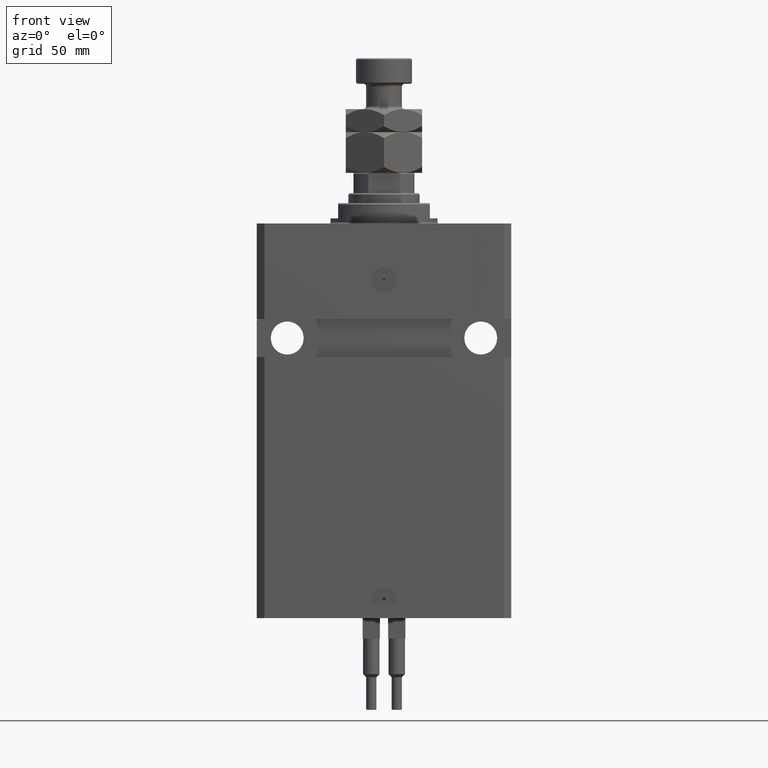
[diagram: clean part render]
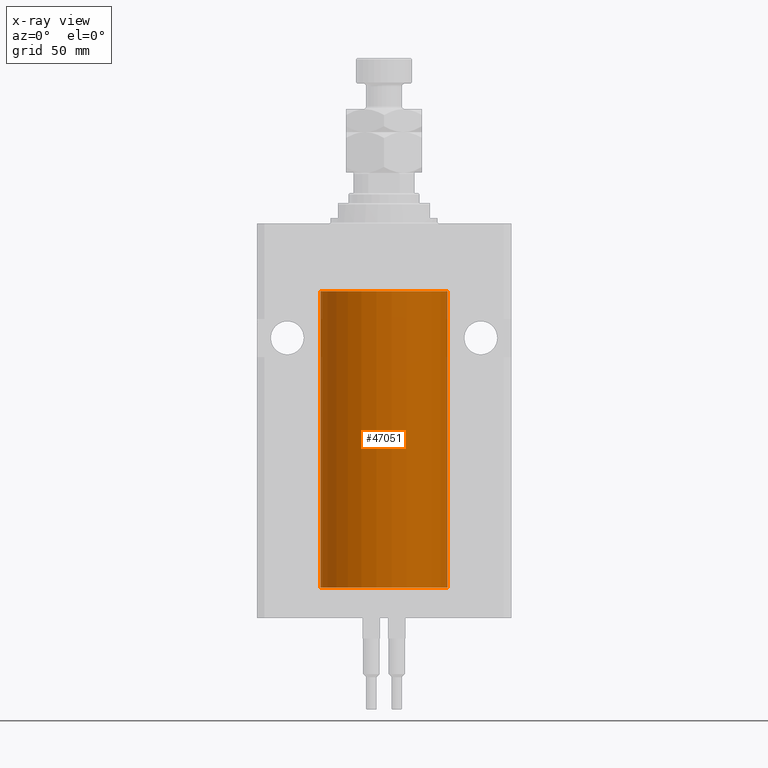
[diagram: x-ray — body ghosted, one internal face saturated and labeled with its STEP entity id]
A machine part, front view, then the same camera in x-ray: the body is ghosted and one INTERNAL B-rep face — a face not visible from any outside direction — is saturated and labeled: STEP entity #47051.
In plain terms, the highlighted cylindrical surface (partial cylindrical patch) has radius 25 mm, axis along (0, 0, 1).
Its self-contained STEP definition (entity closure, byte-faithful):
#353 = DIRECTION ( 'NONE',  ( 1.000000000000000000, 0.000000000000000000, 0.000000000000000000 ) ) ;
#3593 = VECTOR ( 'NONE', #8970, 1000.000000000000000 ) ;
#4002 = CARTESIAN_POINT ( 'NONE',  ( 25.00000000000000000, -0.1650629246255861937, -141.1249999999999716 ) ) ;
#4233 = CARTESIAN_POINT ( 'NONE',  ( 24.99218627891525912, -0.6250000000000449640, -140.4999999999999716 ) ) ;
#4985 = VECTOR ( 'NONE', #43484, 1000.000000000000000 ) ;
#5100 = DIRECTION ( 'NONE',  ( 0.000000000000000000, 0.000000000000000000, 1.000000000000000000 ) ) ;
#6407 = VERTEX_POINT ( 'NONE', #19068 ) ;
#6596 = CARTESIAN_POINT ( 'NONE',  ( 24.99405709967502887, -0.5571503051635620096, -140.1731998930931695 ) ) ;
#7099 = CARTESIAN_POINT ( 'NONE',  ( 24.99405221541606892, -0.5573590499560034939, -140.8264563884999347 ) ) ;
#7250 = ORIENTED_EDGE ( 'NONE', *, *, #29344, .T. ) ;
#8463 = CIRCLE ( 'NONE', #45277, 25.00000000000000000 ) ;
#8895 = CARTESIAN_POINT ( 'NONE',  ( 25.00000000000000000, 2.614778811499482268E-15, -141.1249999999999716 ) ) ;
#8970 = DIRECTION ( 'NONE',  ( -0.000000000000000000, -0.000000000000000000, 1.000000000000000000 ) ) ;
#9222 = CARTESIAN_POINT ( 'NONE',  ( -25.00000000000000355, -0.1631302912503588276, -141.1250000000002274 ) ) ;
#9358 = EDGE_CURVE ( 'NONE', #6407, #35443, #49233, .T. ) ;
#9953 = CARTESIAN_POINT ( 'NONE',  ( 24.99813432839964733, -0.3264764365875501562, -139.9426599702414933 ) ) ;
#10452 = CARTESIAN_POINT ( 'NONE',  ( 24.99218627891525912, -0.6250000000000449640, -140.4999999999999716 ) ) ;
#10730 = CARTESIAN_POINT ( 'NONE',  ( -24.99218973898648599, -0.6248616403601254810, -140.6653718335254553 ) ) ;
#10732 = EDGE_CURVE ( 'NONE', #48457, #18832, #12289, .T. ) ;
#10757 = CARTESIAN_POINT ( 'NONE',  ( -25.00000000000000000, -2.240465332326360227E-14, -139.8749999999999716 ) ) ;
#11699 = CARTESIAN_POINT ( 'NONE',  ( 24.99813006673835503, -0.3267849812101316642, -141.0571664564703553 ) ) ;
#11789 = EDGE_CURVE ( 'NONE', #17080, #26997, #35253, .T. ) ;
#11880 = DIRECTION ( 'NONE',  ( 0.000000000000000000, 0.000000000000000000, 1.000000000000000000 ) ) ;
#12188 = DIRECTION ( 'NONE',  ( -0.000000000000000000, -0.000000000000000000, 1.000000000000000000 ) ) ;
#12289 = CIRCLE ( 'NONE', #27045, 25.00000000000000000 ) ;
#13613 = CARTESIAN_POINT ( 'NONE',  ( 25.00000000000000000, 0.000000000000000000, -143.0999999999999943 ) ) ;
#14064 = CARTESIAN_POINT ( 'NONE',  ( -25.00000000000000711, -0.1651503688830903982, -139.8750000000000284 ) ) ;
#14317 = CARTESIAN_POINT ( 'NONE',  ( -24.99218282981962957, -0.6251379207535932014, -140.3356756471091558 ) ) ;
#14787 = CARTESIAN_POINT ( 'NONE',  ( 25.00000000000000000, 2.614778811499482268E-15, -141.1249999999999716 ) ) ;
#15588 = VECTOR ( 'NONE', #32428, 1000.000000000000000 ) ;
#16992 = B_SPLINE_CURVE_WITH_KNOTS ( 'NONE', 3,
 ( #35032, #31191, #7099, #11699, #4002, #14787 ),
 .UNSPECIFIED., .F., .F.,
 ( 4, 2, 4 ),
 ( 0.002931463836392470077, 0.003419622654026911821, 0.003907781471661353132 ),
 .UNSPECIFIED. ) ;
#17032 = CARTESIAN_POINT ( 'NONE',  ( 25.00000000000000000, 0.000000000000000000, -26.60000000000000142 ) ) ;
#17080 = VERTEX_POINT ( 'NONE', #10757 ) ;
#18008 = ORIENTED_EDGE ( 'NONE', *, *, #11789, .T. ) ;
#18021 = CARTESIAN_POINT ( 'NONE',  ( 25.00000000000000000, 0.000000000000000000, -143.0999999999999943 ) ) ;
#18468 = DIRECTION ( 'NONE',  ( -0.000000000000000000, -0.000000000000000000, 1.000000000000000000 ) ) ;
#18832 = VERTEX_POINT ( 'NONE', #18021 ) ;
#19021 = EDGE_CURVE ( 'NONE', #6407, #36202, #23211, .T. ) ;
#19068 = CARTESIAN_POINT ( 'NONE',  ( 25.00000000000008171, 3.486950366684838397E-13, -139.8749999999966747 ) ) ;
#19372 = CARTESIAN_POINT ( 'NONE',  ( -25.00000000000000000, 3.061616997868383043E-15, -143.0999999999999943 ) ) ;
#20060 = ORIENTED_EDGE ( 'NONE', *, *, #10732, .F. ) ;
#20130 = CARTESIAN_POINT ( 'NONE',  ( -25.00000000000000000, 3.061616997868383043E-15, -143.0999999999999943 ) ) ;
#20743 = DIRECTION ( 'NONE',  ( 1.000000000000000000, 0.000000000000000000, 0.000000000000000000 ) ) ;
#22251 = CARTESIAN_POINT ( 'NONE',  ( -25.00000000000000000, -2.240465332326360227E-14, -139.8749999999999716 ) ) ;
#22618 = AXIS2_PLACEMENT_3D ( 'NONE', #39871, #12188, #27836 ) ;
#23211 = B_SPLINE_CURVE_WITH_KNOTS ( 'NONE', 3,
 ( #25583, #45578, #9953, #6596, #45330, #10452 ),
 .UNSPECIFIED., .F., .F.,
 ( 4, 2, 4 ),
 ( 0.001954111766881311187, 0.002442787801636890632, 0.002931463836392470077 ),
 .UNSPECIFIED. ) ;
#24016 = ORIENTED_EDGE ( 'NONE', *, *, #39868, .F. ) ;
#24094 = CARTESIAN_POINT ( 'NONE',  ( 25.00000000000000000, 0.000000000000000000, -143.0999999999999943 ) ) ;
#25106 = CARTESIAN_POINT ( 'NONE',  ( -24.99406145684571356, -0.5569515746259056099, -140.8270940848234432 ) ) ;
#25357 = EDGE_LOOP ( 'NONE', ( #20060, #7250, #31996, #18008, #29147, #42313, #43520, #44223, #24016 ) ) ;
#25583 = CARTESIAN_POINT ( 'NONE',  ( 25.00000000000008171, 3.486950366684838397E-13, -139.8749999999966747 ) ) ;
#25853 = CARTESIAN_POINT ( 'NONE',  ( -24.99404783808661534, -0.5575587241817613338, -140.1738392125429868 ) ) ;
#26997 = VERTEX_POINT ( 'NONE', #33022 ) ;
#27045 = AXIS2_PLACEMENT_3D ( 'NONE', #40229, #5100, #20743 ) ;
#27246 = B_SPLINE_CURVE_WITH_KNOTS ( 'NONE', 3,
 ( #44354, #9222, #28962, #25106, #10730, #14317, #25853, #45600, #14064, #22251 ),
 .UNSPECIFIED., .F., .F.,
 ( 4, 2, 2, 2, 4 ),
 ( 0.001954111766881379275, 0.002442529193076384015, 0.002930946619271388755, 0.003419364045466393495, 0.003907781471661398234 ),
 .UNSPECIFIED. ) ;
#27836 = DIRECTION ( 'NONE',  ( 1.000000000000000000, 0.000000000000000000, 0.000000000000000000 ) ) ;
#28094 = CYLINDRICAL_SURFACE ( 'NONE', #22618, 25.00000000000000000 ) ;
#28602 = FACE_OUTER_BOUND ( 'NONE', #25357, .T. ) ;
#28962 = CARTESIAN_POINT ( 'NONE',  ( -24.99813644420121506, -0.3263088753891940641, -141.0574119792819374 ) ) ;
#29147 = ORIENTED_EDGE ( 'NONE', *, *, #37452, .T. ) ;
#29344 = EDGE_CURVE ( 'NONE', #48457, #36846, #39365, .T. ) ;
#31191 = CARTESIAN_POINT ( 'NONE',  ( 24.99218627891526268, -0.6250000000000450751, -140.6647828774370623 ) ) ;
#31305 = CARTESIAN_POINT ( 'NONE',  ( -25.00000000000008171, 3.517566533863564531E-13, -141.1250000000032685 ) ) ;
#31996 = ORIENTED_EDGE ( 'NONE', *, *, #40024, .T. ) ;
#32428 = DIRECTION ( 'NONE',  ( -0.000000000000000000, -0.000000000000000000, 1.000000000000000000 ) ) ;
#33022 = CARTESIAN_POINT ( 'NONE',  ( -25.00000000000000000, 3.061616997868383043E-15, -26.60000000000000142 ) ) ;
#35032 = CARTESIAN_POINT ( 'NONE',  ( 24.99218627891525912, -0.6250000000000449640, -140.4999999999999716 ) ) ;
#35120 = VERTEX_POINT ( 'NONE', #8895 ) ;
#35253 = LINE ( 'NONE', #20130, #15588 ) ;
#35443 = VERTEX_POINT ( 'NONE', #17032 ) ;
#36202 = VERTEX_POINT ( 'NONE', #4233 ) ;
#36846 = VERTEX_POINT ( 'NONE', #31305 ) ;
#37452 = EDGE_CURVE ( 'NONE', #26997, #35443, #8463, .T. ) ;
#38239 = EDGE_CURVE ( 'NONE', #36202, #35120, #16992, .T. ) ;
#39365 = LINE ( 'NONE', #40133, #4985 ) ;
#39726 = LINE ( 'NONE', #24094, #3593 ) ;
#39868 = EDGE_CURVE ( 'NONE', #18832, #35120, #39726, .T. ) ;
#39871 = CARTESIAN_POINT ( 'NONE',  ( 0.000000000000000000, 0.000000000000000000, -143.0999999999999943 ) ) ;
#40024 = EDGE_CURVE ( 'NONE', #36846, #17080, #27246, .T. ) ;
#40133 = CARTESIAN_POINT ( 'NONE',  ( -25.00000000000000000, 3.061616997868383043E-15, -143.0999999999999943 ) ) ;
#40229 = CARTESIAN_POINT ( 'NONE',  ( 0.000000000000000000, 0.000000000000000000, -143.0999999999999943 ) ) ;
#42313 = ORIENTED_EDGE ( 'NONE', *, *, #9358, .F. ) ;
#43484 = DIRECTION ( 'NONE',  ( -0.000000000000000000, -0.000000000000000000, 1.000000000000000000 ) ) ;
#43520 = ORIENTED_EDGE ( 'NONE', *, *, #19021, .T. ) ;
#44223 = ORIENTED_EDGE ( 'NONE', *, *, #38239, .T. ) ;
#44354 = CARTESIAN_POINT ( 'NONE',  ( -25.00000000000008171, 3.517566533863564531E-13, -141.1250000000032685 ) ) ;
#45277 = AXIS2_PLACEMENT_3D ( 'NONE', #47009, #11880, #353 ) ;
#45330 = CARTESIAN_POINT ( 'NONE',  ( 24.99218627891525912, -0.6250000000000449640, -140.3350425307653211 ) ) ;
#45578 = CARTESIAN_POINT ( 'NONE',  ( 25.00000000000000000, -0.1632166659117592067, -139.8749999999998010 ) ) ;
#45600 = CARTESIAN_POINT ( 'NONE',  ( -24.99812796309118923, -0.3269516851027416959, -139.9429046887701418 ) ) ;
#47009 = CARTESIAN_POINT ( 'NONE',  ( 0.000000000000000000, 0.000000000000000000, -26.60000000000000142 ) ) ;
#47051 = ADVANCED_FACE ( 'NONE', ( #28602 ), #28094, .F. ) ;
#48457 = VERTEX_POINT ( 'NONE', #19372 ) ;
#49108 = VECTOR ( 'NONE', #18468, 1000.000000000000000 ) ;
#49233 = LINE ( 'NONE', #13613, #49108 ) ;